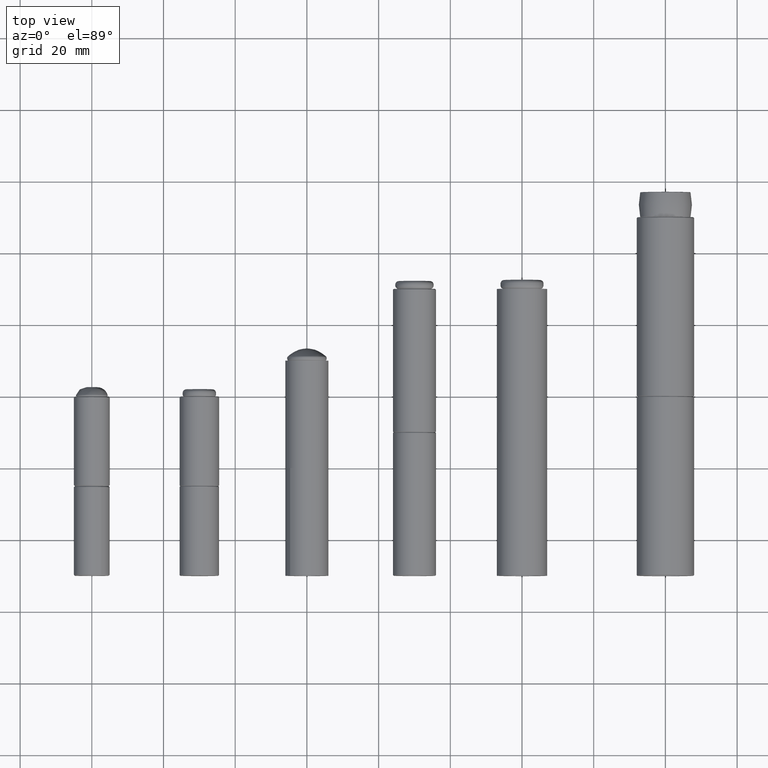
[diagram: clean part render]
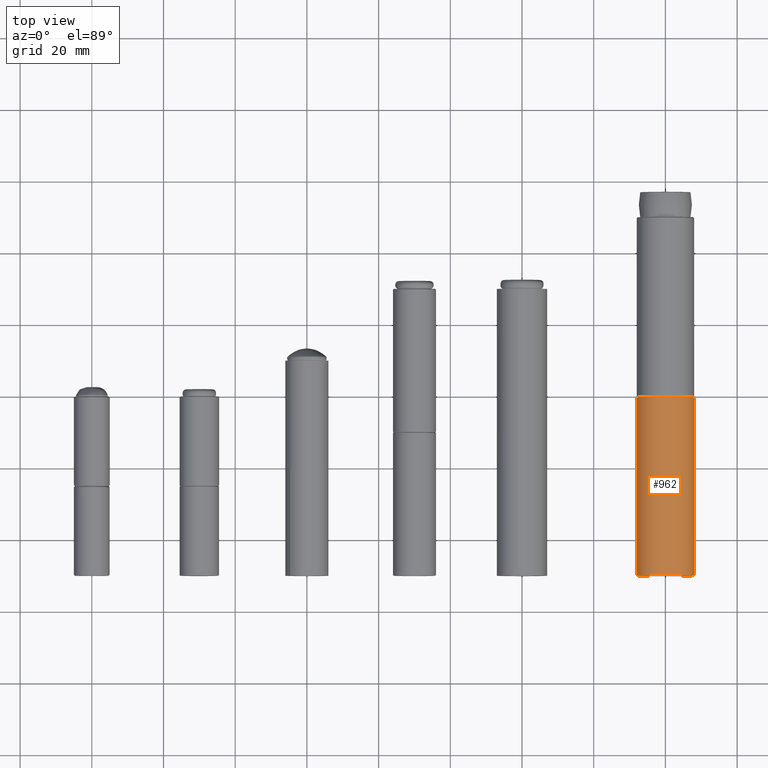
[diagram: same view with one face highlighted and labeled with its STEP entity id]
A machine part, top view. The second image highlights one B-rep face of the part: STEP entity #962.
In plain terms, the highlighted cylindrical surface (bore or boss wall) has radius 8 mm, axis along (-0, 1, -0).
Its self-contained STEP definition (entity closure, byte-faithful):
#270=FACE_BOUND('',#483,.T.);
#347=FACE_OUTER_BOUND('',#482,.T.);
#482=EDGE_LOOP('',(#858));
#483=EDGE_LOOP('',(#859));
#560=CIRCLE('',#1149,8.);
#562=CIRCLE('',#1152,8.);
#634=VERTEX_POINT('',#1853);
#636=VERTEX_POINT('',#1858);
#710=EDGE_CURVE('',#634,#634,#560,.T.);
#712=EDGE_CURVE('',#636,#636,#562,.T.);
#858=ORIENTED_EDGE('',*,*,#712,.F.);
#859=ORIENTED_EDGE('',*,*,#710,.F.);
#888=CYLINDRICAL_SURFACE('',#1151,8.);
#962=ADVANCED_FACE('',(#347,#270),#888,.T.);
#1149=AXIS2_PLACEMENT_3D('',#1854,#1511,#1512);
#1151=AXIS2_PLACEMENT_3D('',#1857,#1515,#1516);
#1152=AXIS2_PLACEMENT_3D('',#1859,#1517,#1518);
#1511=DIRECTION('center_axis',(0.,0.,-1.));
#1512=DIRECTION('ref_axis',(-1.,0.,0.));
#1515=DIRECTION('center_axis',(0.,0.,1.));
#1516=DIRECTION('ref_axis',(-1.,0.,0.));
#1517=DIRECTION('center_axis',(0.,0.,1.));
#1518=DIRECTION('ref_axis',(-1.,0.,0.));
#1853=CARTESIAN_POINT('',(8.,-9.79717439317883E-16,0.2));
#1854=CARTESIAN_POINT('Origin',(0.,0.,0.2));
#1857=CARTESIAN_POINT('Origin',(0.,0.,0.));
#1858=CARTESIAN_POINT('',(8.,9.79717439317883E-16,49.8));
#1859=CARTESIAN_POINT('Origin',(0.,0.,49.8));